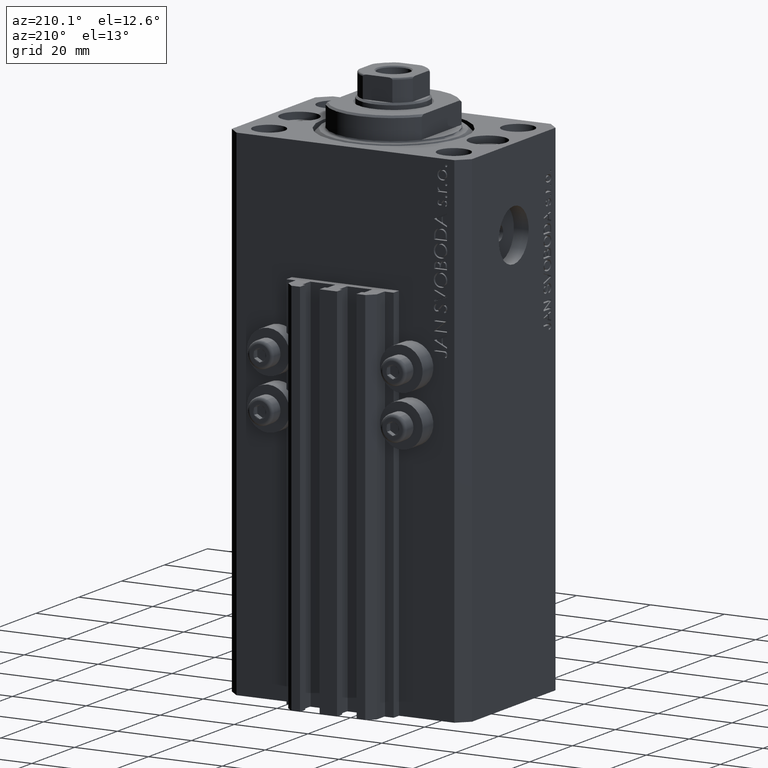
[diagram: clean part render]
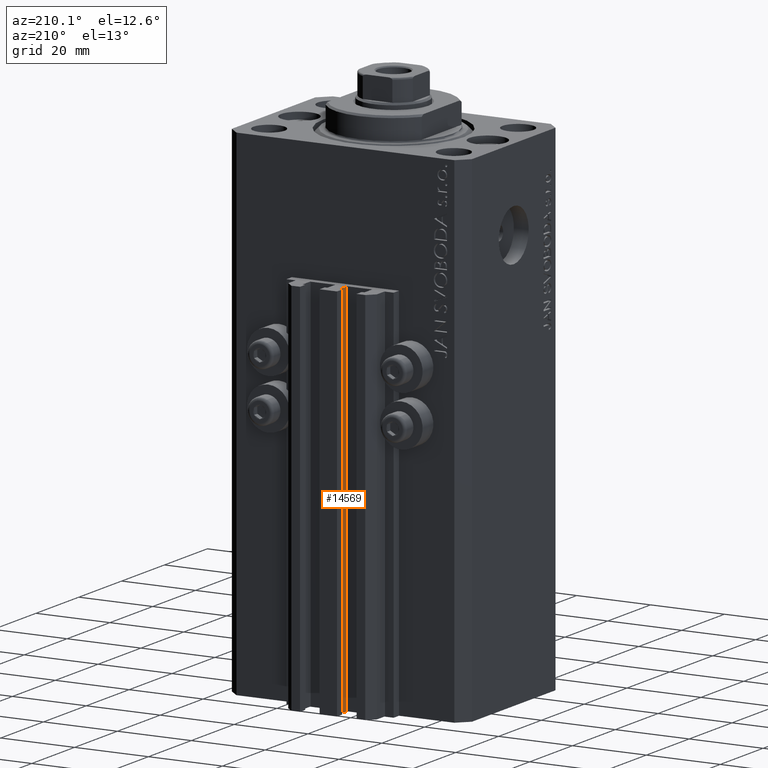
[diagram: same view with one face highlighted and labeled with its STEP entity id]
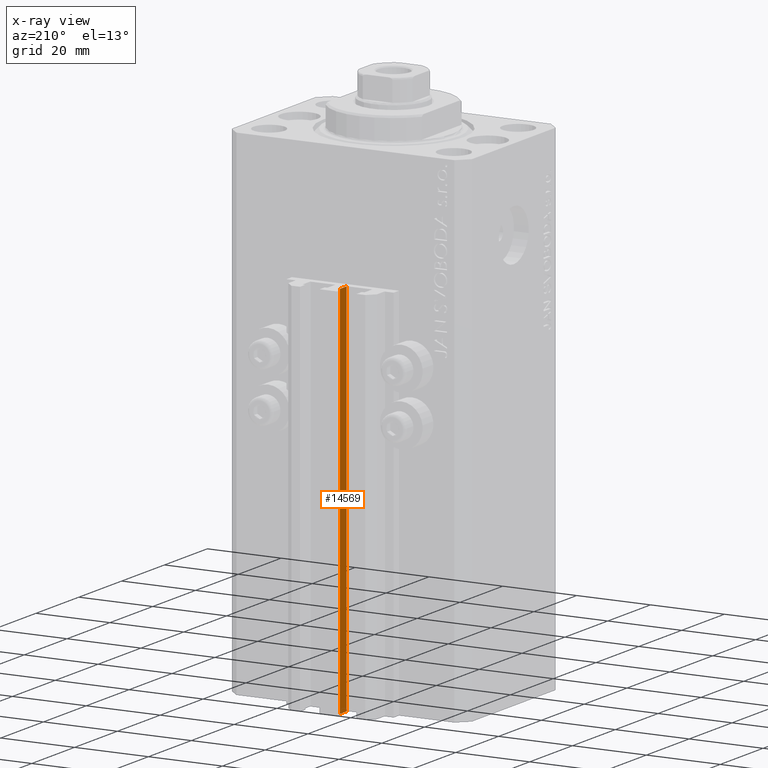
[diagram: x-ray of the same camera — body ghosted, the highlighted face saturated]
A machine part, auxiliary view. The second image highlights one B-rep face of the part: STEP entity #14569.
The next image is the same camera in x-ray: the body ghosted, the highlighted face saturated — about 0% of this face is hidden behind the body in this view.
In plain terms, the highlighted planar face has unit normal (-1, 0, 0).
Its self-contained STEP definition (entity closure, byte-faithful):
#2309 = VECTOR ( 'NONE', #24970, 1000.000000000000000 ) ;
#2420 = DIRECTION ( 'NONE',  ( -6.776263578034385456E-17, -1.000000000000000000, 0.000000000000000000 ) ) ;
#5876 = ORIENTED_EDGE ( 'NONE', *, *, #42107, .F. ) ;
#6761 = ORIENTED_EDGE ( 'NONE', *, *, #10523, .F. ) ;
#8829 = EDGE_LOOP ( 'NONE', ( #6761, #5876, #19863, #36238 ) ) ;
#10523 = EDGE_CURVE ( 'NONE', #34476, #39124, #17004, .T. ) ;
#13760 = DIRECTION ( 'NONE',  ( 0.000000000000000000, 0.000000000000000000, 1.000000000000000000 ) ) ;
#14569 = ADVANCED_FACE ( 'NONE', ( #28353 ), #39790, .T. ) ;
#14950 = CARTESIAN_POINT ( 'NONE',  ( -1.600000000000003197, 27.89999999999950120, -135.0000000000000000 ) ) ;
#15027 = CARTESIAN_POINT ( 'NONE',  ( -1.600000000000000533, 27.89999999999950120, -135.0000000000000000 ) ) ;
#17004 = LINE ( 'NONE', #24138, #43065 ) ;
#17064 = CARTESIAN_POINT ( 'NONE',  ( -1.600000000000003197, 27.89999999999950120, -33.00000000000000000 ) ) ;
#17121 = CARTESIAN_POINT ( 'NONE',  ( -1.600000000000000755, 24.69999999999949480, -135.0000000000000000 ) ) ;
#18444 = CARTESIAN_POINT ( 'NONE',  ( -1.600000000000000755, 24.69999999999949480, -135.0000000000000000 ) ) ;
#18651 = EDGE_CURVE ( 'NONE', #23790, #39124, #25195, .T. ) ;
#19863 = ORIENTED_EDGE ( 'NONE', *, *, #35853, .T. ) ;
#23556 = CARTESIAN_POINT ( 'NONE',  ( -1.600000000000000755, 24.69999999999949480, -33.00000000000000000 ) ) ;
#23790 = VERTEX_POINT ( 'NONE', #18444 ) ;
#24138 = CARTESIAN_POINT ( 'NONE',  ( -1.600000000000000533, 27.89999999999950120, -33.00000000000000000 ) ) ;
#24970 = DIRECTION ( 'NONE',  ( 0.000000000000000000, 0.000000000000000000, 1.000000000000000000 ) ) ;
#25195 = LINE ( 'NONE', #17121, #43393 ) ;
#26222 = LINE ( 'NONE', #15027, #28918 ) ;
#28353 = FACE_OUTER_BOUND ( 'NONE', #8829, .T. ) ;
#28680 = AXIS2_PLACEMENT_3D ( 'NONE', #28816, #46498, #43377 ) ;
#28816 = CARTESIAN_POINT ( 'NONE',  ( -1.600000000000000533, 27.89999999999950120, -135.0000000000000000 ) ) ;
#28918 = VECTOR ( 'NONE', #37205, 1000.000000000000000 ) ;
#33677 = CARTESIAN_POINT ( 'NONE',  ( -1.600000000000003197, 27.89999999999950120, -135.0000000000000000 ) ) ;
#34476 = VERTEX_POINT ( 'NONE', #17064 ) ;
#35853 = EDGE_CURVE ( 'NONE', #41505, #23790, #26222, .T. ) ;
#36238 = ORIENTED_EDGE ( 'NONE', *, *, #18651, .T. ) ;
#37205 = DIRECTION ( 'NONE',  ( -6.776263578034385456E-17, -1.000000000000000000, 0.000000000000000000 ) ) ;
#39124 = VERTEX_POINT ( 'NONE', #23556 ) ;
#39790 = PLANE ( 'NONE',  #28680 ) ;
#40467 = LINE ( 'NONE', #14950, #2309 ) ;
#41505 = VERTEX_POINT ( 'NONE', #33677 ) ;
#42107 = EDGE_CURVE ( 'NONE', #41505, #34476, #40467, .T. ) ;
#43065 = VECTOR ( 'NONE', #2420, 1000.000000000000000 ) ;
#43377 = DIRECTION ( 'NONE',  ( -6.776263578034385456E-17, -1.000000000000000000, 0.000000000000000000 ) ) ;
#43393 = VECTOR ( 'NONE', #13760, 1000.000000000000000 ) ;
#46498 = DIRECTION ( 'NONE',  ( -1.000000000000000000, 6.776263578034385456E-17, 0.000000000000000000 ) ) ;